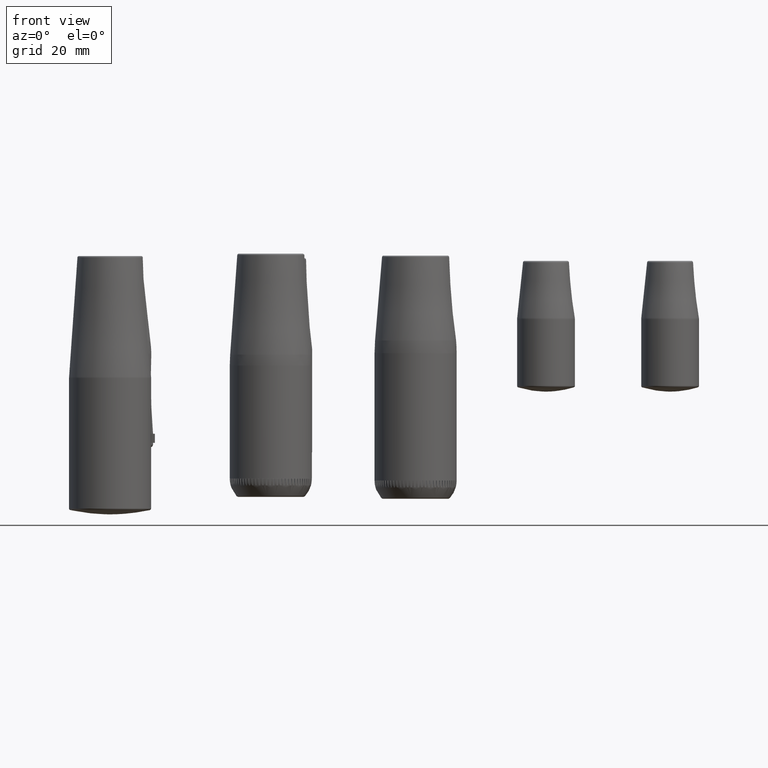
[diagram: clean part render]
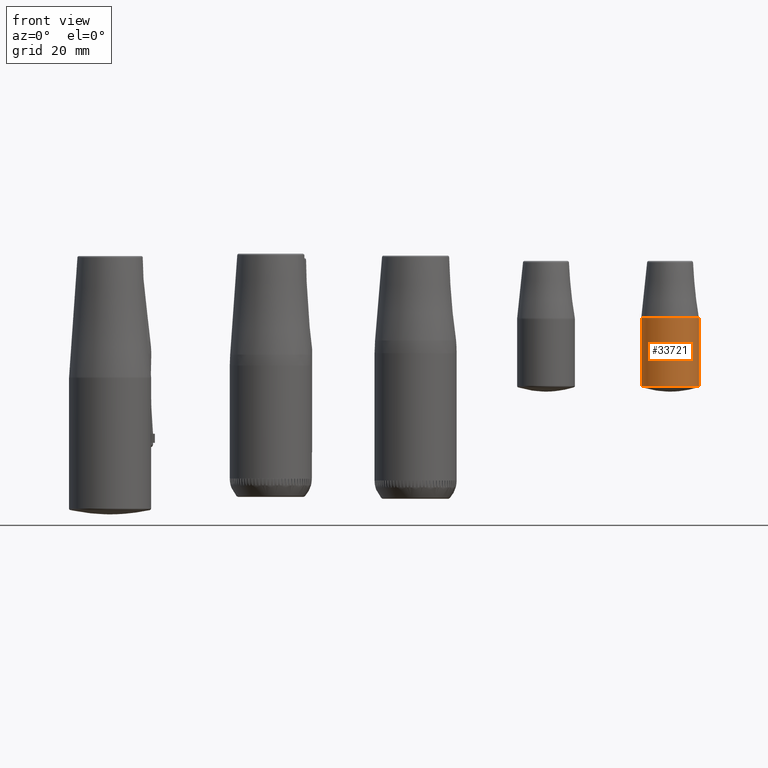
[diagram: same view with one face highlighted and labeled with its STEP entity id]
A machine part, front view. The second image highlights one B-rep face of the part: STEP entity #33721.
In plain terms, the highlighted cylindrical surface (bore or boss wall) has radius 9.5 mm, axis along (0, 0, -1).
Its self-contained STEP definition (entity closure, byte-faithful):
#5019=B_SPLINE_CURVE_WITH_KNOTS('',3,(#51757,#51758,#51759,#51760,#51761,
#51762,#51763,#51764,#51765,#51766,#51767,#51768,#51769,#51770,#51771),
 .UNSPECIFIED.,.T.,.F.,(4,1,1,1,1,1,1,1,1,1,1,1,4),(-3.14159265358979,-2.61799656608309,
-2.09440047857638,-1.57080439106967,-1.04720734447724,-0.5236102978848,
-1.32512923638473E-5,0.523584636090729,1.04718252347382,1.57078041085691,
2.09438449176787,2.61798857267883,3.14159265358979),.UNSPECIFIED.);
#6630=CYLINDRICAL_SURFACE('',#35841,9.5);
#7319=FACE_BOUND('',#9602,.T.);
#7490=FACE_OUTER_BOUND('',#9601,.T.);
#9601=EDGE_LOOP('',(#23041));
#9602=EDGE_LOOP('',(#23042));
#11869=CIRCLE('',#35842,9.5);
#14288=VERTEX_POINT('',#51755);
#14290=VERTEX_POINT('',#51853);
#17698=EDGE_CURVE('',#14288,#14288,#5019,.T.);
#17701=EDGE_CURVE('',#14290,#14290,#11869,.T.);
#23041=ORIENTED_EDGE('',*,*,#17701,.F.);
#23042=ORIENTED_EDGE('',*,*,#17698,.F.);
#33721=ADVANCED_FACE('',(#7490,#7319),#6630,.T.);
#35841=AXIS2_PLACEMENT_3D('',#51852,#40384,#40385);
#35842=AXIS2_PLACEMENT_3D('',#51854,#40386,#40387);
#40384=DIRECTION('center_axis',(0.,0.,-1.));
#40385=DIRECTION('ref_axis',(1.,0.,0.));
#40386=DIRECTION('center_axis',(0.,0.,1.));
#40387=DIRECTION('ref_axis',(1.,-1.22464679914735E-16,0.));
#51755=CARTESIAN_POINT('',(-9.5,5.55111512312578E-16,-41.1314971342156));
#51757=CARTESIAN_POINT('Ctrl Pts',(-9.50066543954258,9.15514907235499E-5,
-41.1314948234731));
#51758=CARTESIAN_POINT('Ctrl Pts',(-9.50069382991416,1.65791559775531,-41.131494853506));
#51759=CARTESIAN_POINT('Ctrl Pts',(-8.61371804615387,4.97341848881517,-41.1315289400703));
#51760=CARTESIAN_POINT('Ctrl Pts',(-4.97193772282952,8.61221813219561,-41.131526397337));
#51761=CARTESIAN_POINT('Ctrl Pts',(-0.000229868969395321,9.94487691506107,
-41.1314774621608));
#51762=CARTESIAN_POINT('Ctrl Pts',(4.97355951724087,8.61350848411571,-41.131528780723));
#51763=CARTESIAN_POINT('Ctrl Pts',(8.61203067815588,4.97220403394297,-41.1315261168311));
#51764=CARTESIAN_POINT('Ctrl Pts',(9.94502057554958,-8.11805645432433E-5,
-41.1314778134987));
#51765=CARTESIAN_POINT('Ctrl Pts',(8.61205950735636,-4.97209134176979,-41.1315260392819));
#51766=CARTESIAN_POINT('Ctrl Pts',(4.97344983207419,-8.61370240245316,-41.1315290948087));
#51767=CARTESIAN_POINT('Ctrl Pts',(-7.58967291566984E-5,-9.94466365249716,
-41.1314770679399));
#51768=CARTESIAN_POINT('Ctrl Pts',(-4.97336272629746,-8.61386678189045,
-41.1315292669057));
#51769=CARTESIAN_POINT('Ctrl Pts',(-8.61221814372814,-4.97164220129174,
-41.1315259509841));
#51770=CARTESIAN_POINT('Ctrl Pts',(-9.50063704873758,-1.65775780370587,
-41.1314947934396));
#51771=CARTESIAN_POINT('Ctrl Pts',(-9.50066543954258,9.15514907234849E-5,
-41.1314948234731));
#51852=CARTESIAN_POINT('Origin',(0.,0.,-19.));
#51853=CARTESIAN_POINT('',(-9.5,0.,-19.1574597618142));
#51854=CARTESIAN_POINT('Origin',(0.,0.,-19.1574597618142));